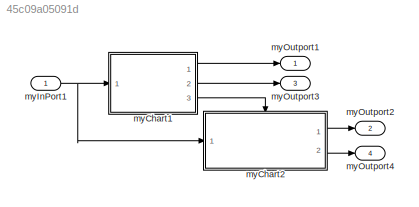
MODEL slx_45c09a05091d
KIND model
CONFIG AbsTol = auto
CONFIG EnableMultiTasking = off
CONFIG FixedStep = auto
CONFIG MaxStep = auto
CONFIG MinStep = auto
CONFIG RelTol = 1e-3
CONFIG SampleTimeConstraint = Unconstrained
CONFIG SolverName = FixedStepAuto
CONFIG StartTime = 0.0
CONFIG StopTime = 10.0
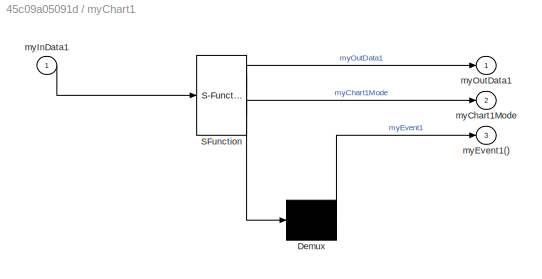
BLOCK [SubSystem] myChart1
  ErrorFcn = Stateflow.Translate.translate
  PermitHierarchicalResolution = ExplicitOnly
  Ports = [1, 3]
  RequestExecContextInheritance = off
  SFBlockType = Chart
  TreatAsAtomicUnit = on
BLOCK [Demux] myChart1/ Demux 
  Outputs = 1
  Ports = [1, 1]
BLOCK [S-Function] myChart1/ SFunction 
  EnableBusSupport = on
  FunctionName = sf_sfun
  PortCounts = [1 3]
  Ports = [1, 3]
  SFcnIsStateOwnerBlock = off
  SFunctionDeploymentMode = off
  Tag = Stateflow S-Function 3
BLOCK [Outport] myChart1/myChart1Mode
  Port = 2
BLOCK [Outport] myChart1/myEvent1()
  Port = 3
BLOCK [Inport] myChart1/myInData1
BLOCK [Outport] myChart1/myOutData1
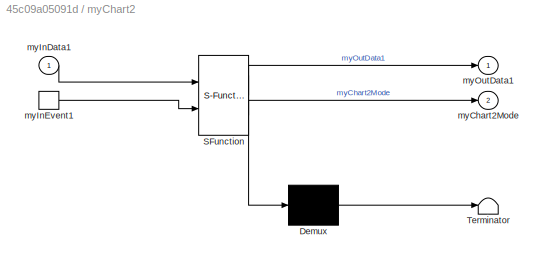
BLOCK [SubSystem] myChart2
  ErrorFcn = Stateflow.Translate.translate
  PermitHierarchicalResolution = ExplicitOnly
  Ports = [1, 2, 0, 1]
  RequestExecContextInheritance = off
  SFBlockType = Chart
  TreatAsAtomicUnit = on
BLOCK [Demux] myChart2/ Demux 
  Outputs = 1
  Ports = [1, 1]
BLOCK [S-Function] myChart2/ SFunction 
  EnableBusSupport = on
  FunctionName = sf_sfun
  PortCounts = [2 3]
  Ports = [2, 3]
  SFcnIsStateOwnerBlock = off
  SFunctionDeploymentMode = off
  Tag = Stateflow S-Function 1
BLOCK [Terminator] myChart2/ Terminator 
BLOCK [Outport] myChart2/myChart2Mode
  Port = 2
BLOCK [Inport] myChart2/myInData1
BLOCK [TriggerPort] myChart2/myInEvent1
  Ports = [0, 1]
  ShowOutputPort = on
  StatesWhenEnabling = held
  TriggerType = function-call
  VariantControl = (inherit)
BLOCK [Outport] myChart2/myOutData1
BLOCK [Inport] myInPort1
BLOCK [Outport] myOutport1
BLOCK [Outport] myOutport2
  Port = 2
BLOCK [Outport] myOutport3
  Port = 3
BLOCK [Outport] myOutport4
  Port = 4
LINE myChart1:1 -> myOutport1:1
LINE myChart1:2 -> myOutport3:1
LINE myChart1:3 -> myChart2:trigger
LINE myChart2:1 -> myOutport2:1
LINE myChart2:2 -> myOutport4:1
NET myInPort1:1 -> myChart1:1, myChart2:1
note: NET lines group one-source signal fan-out (src -> all destinations, sorted); 1:1 wires keep LINE
CHART myChart2 states=5 transitions=6
  STATE_LABEL 'myState2\nmyOutData1=myMfcn1(myInData1);'
  STATE_LABEL 'myState1\nmyOutData1=myGfcn1(myInData1);'
  STATE_LABEL 'myGfcn1_OutArg1=myGfcn1(myGfcn1_InArg1)'
  STATE_LABEL '[myGfcn1_InArg1>2]{myGfcn1_OutArg1=myGfcn1_InArg1+1;}'
  STATE_LABEL '{myGfcn1_OutArg1=myGfcn1_InArg1+2;}'
  STATE_LABEL 'myState3\nmyOutData1=342;'
  STATE_LABEL 'myMfcn1_OutArg1=myMfcn1(myMfcn1_InArg1)'
  STATE_LABEL 'SCRIPT:\nfunction myMfcn1_OutArg1=myMfcn1(myMfcn1_InArg1)\n    if myMfcn1_InArg1 > 3\n        myMfcn1_OutArg1=myMfcn1_InArg1+1;\n    else\n        myMfcn1_OutArg1=myMfcn1_InArg1+2;\n    end\nend\n        \n \n'
CHART myChart1 states=5 transitions=6
  STATE_LABEL 'myState1\nmyOutData1=myGfcn1(myInData1);\ndu:\nsend(myEvent1);'
  STATE_LABEL 'myState2\nmyOutData1=myMfcn1(myInData1);'
  STATE_LABEL 'myGfcn1_OutArg1=myGfcn1(myGfcn1_InArg1)'
  STATE_LABEL '[myGfcn1_InArg1>2]{myGfcn1_OutArg1=myGfcn1_InArg1+1;}'
  STATE_LABEL '{myGfcn1_OutArg1=myGfcn1_InArg1+myMachineData1;}'
  STATE_LABEL 'myState3\nmyOutData1=342;'
  STATE_LABEL 'myMfcn1_OutArg1=myMfcn1(myMfcn1_InArg1)'
  STATE_LABEL 'SCRIPT:\nfunction myMfcn1_OutArg1=myMfcn1(myMfcn1_InArg1)\n    if myMfcn1_InArg1 > 3\n        myMfcn1_OutArg1=myMfcn1_InArg1+1;\n    else\n        myMfcn1_OutArg1=myMfcn1_InArg1+2;\n    end\nend\n        \n \n'
CHART  states=0 transitions=0
CHART  states=0 transitions=0
